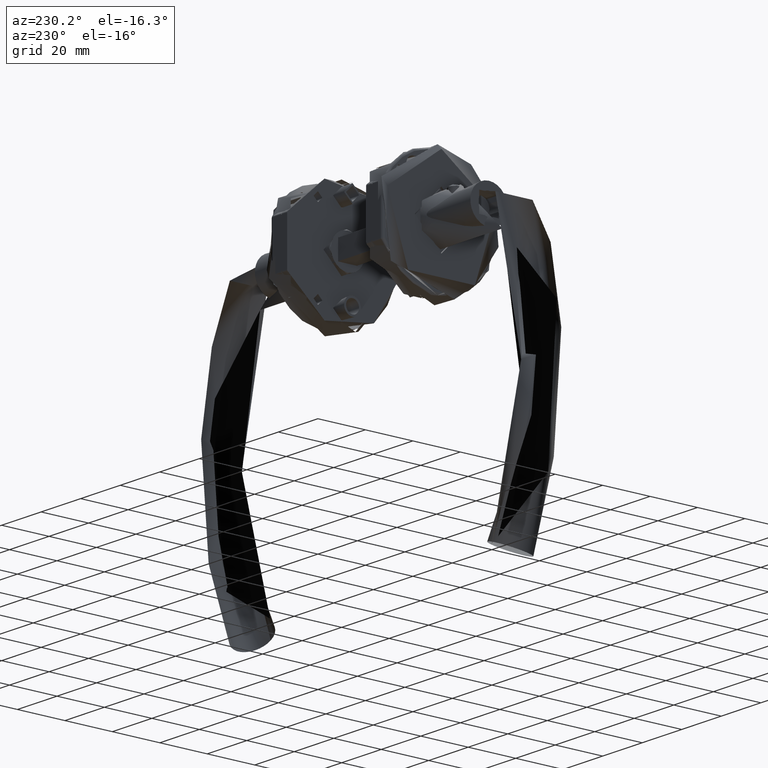
[diagram: clean part render]
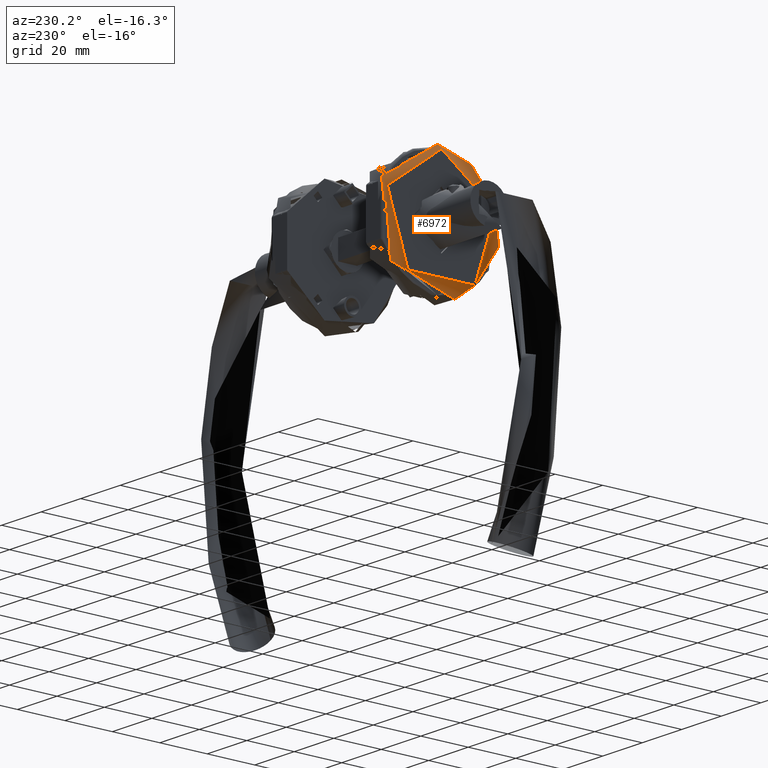
[diagram: same view with one face highlighted and labeled with its STEP entity id]
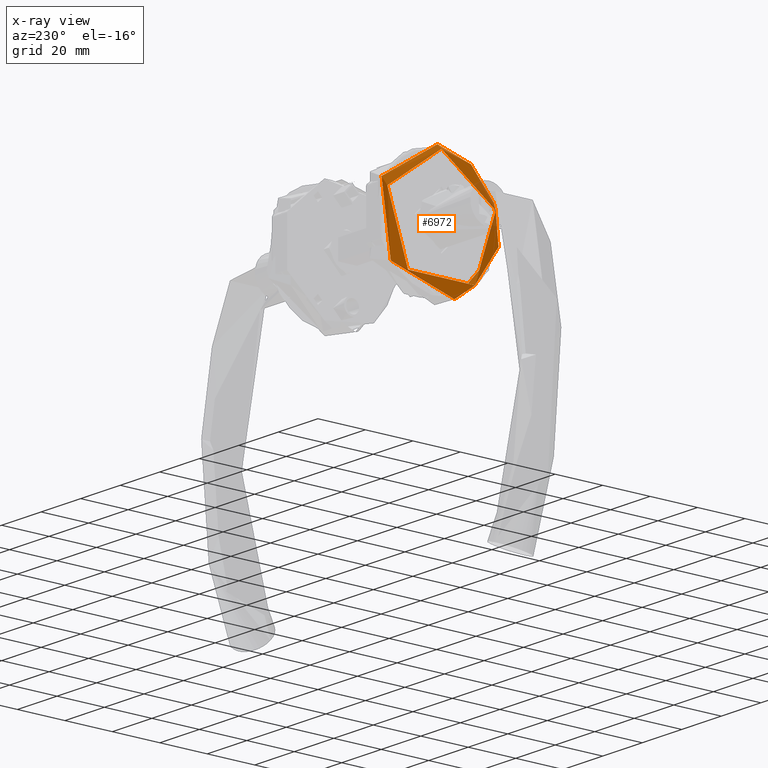
[diagram: x-ray of the same camera — body ghosted, the highlighted face saturated]
A machine part, auxiliary view. The second image highlights one B-rep face of the part: STEP entity #6972.
The next image is the same camera in x-ray: the body ghosted, the highlighted face saturated — about 8% of this face is hidden behind the body in this view.
In plain terms, the highlighted toroidal blend (fillet) surface has major radius 24 mm and minor (blend) radius 2 mm.
Its self-contained STEP definition (entity closure, byte-faithful):
#95 = VERTEX_POINT ( 'NONE', #724 ) ;
#531 = CIRCLE ( 'NONE', #5130, 26.00000000000000400 ) ;
#724 = CARTESIAN_POINT ( 'NONE',  ( 26.00000000000000400, 0.0000000000000000000, 8.500000000000000000 ) ) ;
#1298 = VERTEX_POINT ( 'NONE', #10086 ) ;
#1392 = DIRECTION ( 'NONE',  ( 0.0000000000000000000, 0.0000000000000000000, 1.000000000000000000 ) ) ;
#1676 = DIRECTION ( 'NONE',  ( -0.0000000000000000000, -0.0000000000000000000, -1.000000000000000000 ) ) ;
#2741 = CIRCLE ( 'NONE', #20836, 24.00000000000000000 ) ;
#3922 = EDGE_LOOP ( 'NONE', ( #17831 ) ) ;
#5130 = AXIS2_PLACEMENT_3D ( 'NONE', #15617, #1676, #13580 ) ;
#6731 = FACE_OUTER_BOUND ( 'NONE', #3922, .T. ) ;
#6797 = DIRECTION ( 'NONE',  ( 1.000000000000000000, 0.0000000000000000000, 0.0000000000000000000 ) ) ;
#6972 = ADVANCED_FACE ( 'NONE', ( #21919, #6731 ), #22873, .T. ) ;
#10086 = CARTESIAN_POINT ( 'NONE',  ( 24.00000000000000000, 0.0000000000000000000, 10.50000000000000000 ) ) ;
#10624 = DIRECTION ( 'NONE',  ( 0.0000000000000000000, 0.0000000000000000000, 1.000000000000000000 ) ) ;
#11519 = EDGE_CURVE ( 'NONE', #1298, #1298, #2741, .T. ) ;
#12412 = ORIENTED_EDGE ( 'NONE', *, *, #17276, .F. ) ;
#12970 = CARTESIAN_POINT ( 'NONE',  ( 0.0000000000000000000, 0.0000000000000000000, 8.500000000000000000 ) ) ;
#13303 = DIRECTION ( 'NONE',  ( 1.000000000000000000, 0.0000000000000000000, 0.0000000000000000000 ) ) ;
#13580 = DIRECTION ( 'NONE',  ( 1.000000000000000000, 0.0000000000000000000, 0.0000000000000000000 ) ) ;
#14268 = AXIS2_PLACEMENT_3D ( 'NONE', #12970, #1392, #13303 ) ;
#15617 = CARTESIAN_POINT ( 'NONE',  ( 0.0000000000000000000, 0.0000000000000000000, 8.500000000000000000 ) ) ;
#17276 = EDGE_CURVE ( 'NONE', #95, #95, #531, .T. ) ;
#17831 = ORIENTED_EDGE ( 'NONE', *, *, #11519, .F. ) ;
#20836 = AXIS2_PLACEMENT_3D ( 'NONE', #24307, #10624, #6797 ) ;
#21582 = EDGE_LOOP ( 'NONE', ( #12412 ) ) ;
#21919 = FACE_OUTER_BOUND ( 'NONE', #21582, .T. ) ;
#22873 = TOROIDAL_SURFACE ( 'NONE', #14268, 24.00000000000000000, 2.000000000000000000 ) ;
#24307 = CARTESIAN_POINT ( 'NONE',  ( 0.0000000000000000000, 0.0000000000000000000, 10.50000000000000000 ) ) ;